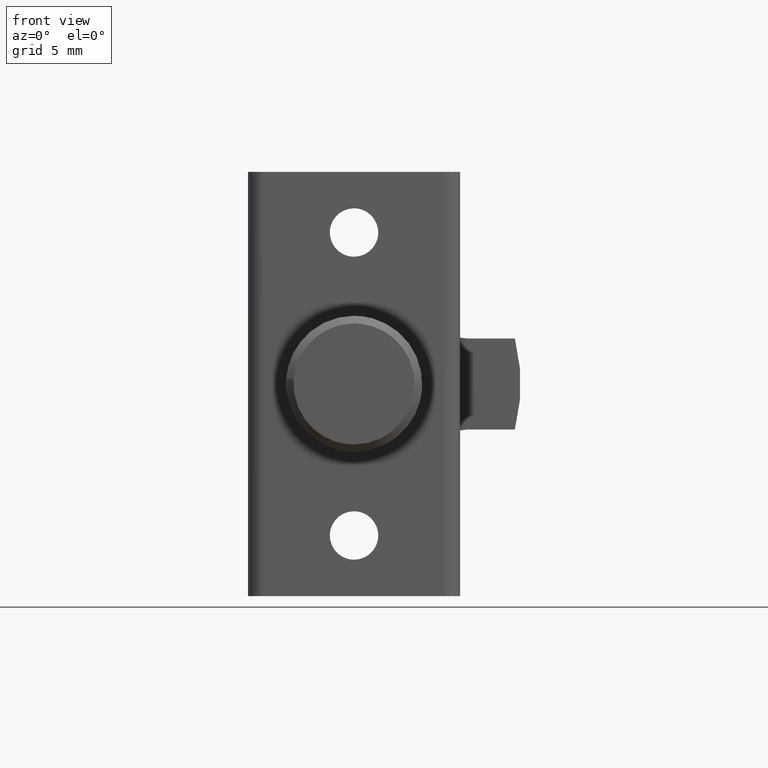
[diagram: clean part render]
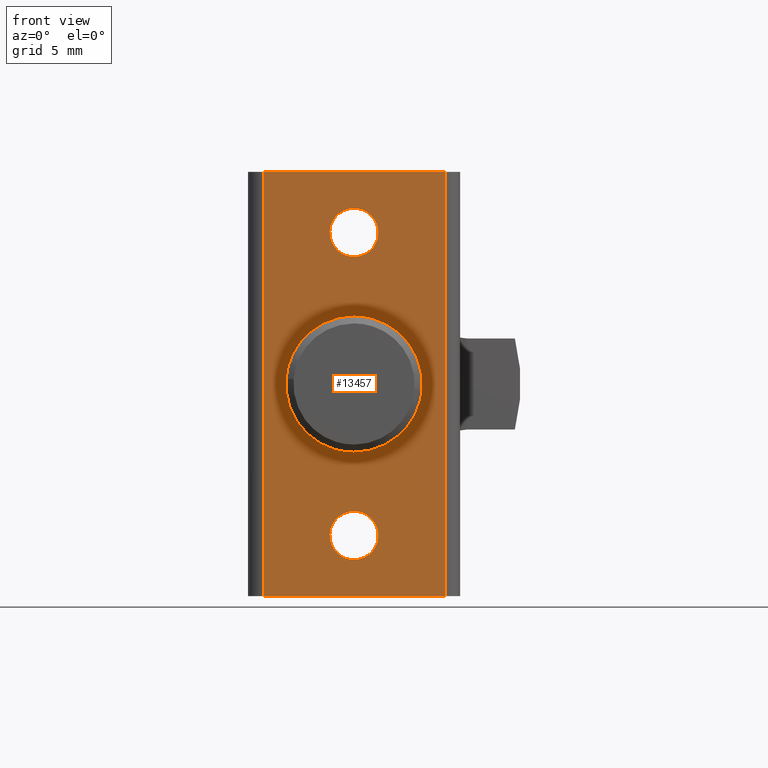
[diagram: same view with one face highlighted and labeled with its STEP entity id]
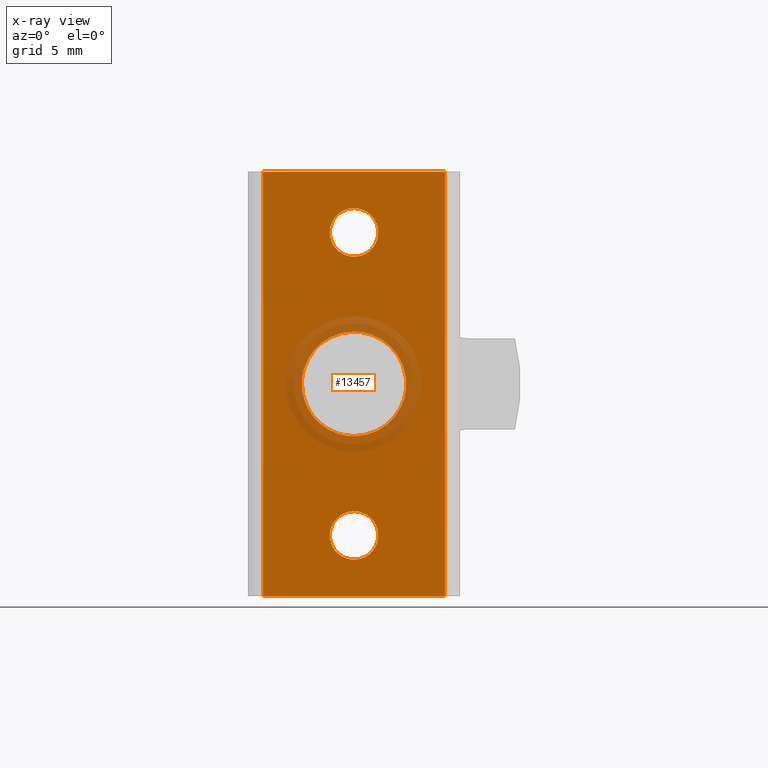
[diagram: x-ray of the same camera — body ghosted, the highlighted face saturated]
A machine part, front view. The second image highlights one B-rep face of the part: STEP entity #13457.
The next image is the same camera in x-ray: the body ghosted, the highlighted face saturated — about 9% of this face is hidden behind the body in this view.
In plain terms, the highlighted face is a freeform B-spline surface patch.
Its self-contained STEP definition (entity closure, byte-faithful):
#12271=CARTESIAN_POINT('',(-5.146464E-017,-3.425882865951193,-0.407218649352348));
#12272=VERTEX_POINT('',#12271);
#12273=CARTESIAN_POINT('',(0.0,0.0,3.449999460242545));
#12274=VERTEX_POINT('',#12273);
#12275=CARTESIAN_POINT('',(-5.146464E-017,-3.425882865951193,-0.407218649352348));
#12276=CARTESIAN_POINT('',(0.0,-3.449999999999999,-0.204323752585928));
#12277=CARTESIAN_POINT('',(0.0,-3.450000000000000,-0.000000539757455));
#12278=CARTESIAN_POINT('',(0.0,-3.450000000000000,3.449999460242546));
#12279=CARTESIAN_POINT('',(0.0,0.0,3.449999460242545));
#12287=(BOUNDED_CURVE()B_SPLINE_CURVE(2,(#12275,#12276,#12277,#12278,#12279),.UNSPECIFIED.,.F.,.U.)B_SPLINE_CURVE_WITH_KNOTS((3,2,3),(0.229562473512776,0.250000000000000,0.500000000000000),.UNSPECIFIED.)CURVE()GEOMETRIC_REPRESENTATION_ITEM()RATIONAL_B_SPLINE_CURVE((0.956026754182263,0.976055948330287,1.0,0.707106781186548,1.0))REPRESENTATION_ITEM(''));
#12288=EDGE_CURVE('',#12272,#12274,#12287,.T.);
#12290=CARTESIAN_POINT('',(-5.204170E-017,3.443565054553264,0.210616921673395));
#12291=VERTEX_POINT('',#12290);
#12292=CARTESIAN_POINT('',(0.0,0.0,3.449999460242545));
#12293=CARTESIAN_POINT('',(0.0,3.245435930757425,3.449999460242544));
#12294=CARTESIAN_POINT('',(-5.204170E-017,3.443565054553264,0.210616921673395));
#12302=(BOUNDED_CURVE()B_SPLINE_CURVE(2,(#12292,#12293,#12294),.UNSPECIFIED.,.F.,.U.)B_SPLINE_CURVE_WITH_KNOTS((3,3),(0.500000000000000,0.739332962238401),.UNSPECIFIED.)CURVE()GEOMETRIC_REPRESENTATION_ITEM()RATIONAL_B_SPLINE_CURVE((1.0,0.719603993287345,0.976072041665556))REPRESENTATION_ITEM(''));
#12303=EDGE_CURVE('',#12274,#12291,#12302,.T.);
#12370=CARTESIAN_POINT('',(0.0,0.0,-3.450000539757455));
#12371=VERTEX_POINT('',#12370);
#12372=CARTESIAN_POINT('',(0.0,0.0,-3.450000539757455));
#12373=CARTESIAN_POINT('',(0.0,-3.064202114479840,-3.450000539757455));
#12374=CARTESIAN_POINT('',(-5.146464E-017,-3.425882865951193,-0.407218649352348));
#12382=(BOUNDED_CURVE()B_SPLINE_CURVE(2,(#12372,#12373,#12374),.UNSPECIFIED.,.F.,.U.)B_SPLINE_CURVE_WITH_KNOTS((3,3),(0.0,0.229562473512776),.UNSPECIFIED.)CURVE()GEOMETRIC_REPRESENTATION_ITEM()RATIONAL_B_SPLINE_CURVE((1.0,0.731050832856261,0.956026754182263))REPRESENTATION_ITEM(''));
#12383=EDGE_CURVE('',#12371,#12272,#12382,.T.);
#12417=CARTESIAN_POINT('',(-5.204170E-017,3.443565054553263,0.210616921673395));
#12418=CARTESIAN_POINT('',(0.0,3.450000000000000,0.105406493658370));
#12419=CARTESIAN_POINT('',(0.0,3.450000000000000,-0.000000539757455));
#12420=CARTESIAN_POINT('',(0.0,3.450000000000000,-3.450000539757455));
#12421=CARTESIAN_POINT('',(0.0,0.0,-3.450000539757455));
#12429=(BOUNDED_CURVE()B_SPLINE_CURVE(2,(#12417,#12418,#12419,#12420,#12421),.UNSPECIFIED.,.F.,.U.)B_SPLINE_CURVE_WITH_KNOTS((3,2,3),(0.739332962238401,0.750000000000000,1.0),.UNSPECIFIED.)CURVE()GEOMETRIC_REPRESENTATION_ITEM()RATIONAL_B_SPLINE_CURVE((0.976072041665557,0.987502787899203,1.0,0.707106781186548,1.0))REPRESENTATION_ITEM(''));
#12430=EDGE_CURVE('',#12291,#12371,#12429,.T.);
#12476=CARTESIAN_POINT('',(6.388714E-017,-1.588815570308451,-10.188851737159069));
#12477=VERTEX_POINT('',#12476);
#12483=CARTESIAN_POINT('',(0.0,0.0,-8.399999722243420));
#12484=VERTEX_POINT('',#12483);
#12485=CARTESIAN_POINT('',(6.388714E-017,-1.588815570308451,-10.188851737159073));
#12486=CARTESIAN_POINT('',(0.0,-1.600000000000000,-10.094756918827244));
#12487=CARTESIAN_POINT('',(0.0,-1.600000000000000,-9.999999722243420));
#12488=CARTESIAN_POINT('',(0.0,-1.600000000000000,-8.399999722243420));
#12489=CARTESIAN_POINT('',(0.0,0.0,-8.399999722243420));
#12497=(BOUNDED_CURVE()B_SPLINE_CURVE(2,(#12485,#12486,#12487,#12488,#12489),.UNSPECIFIED.,.F.,.U.)B_SPLINE_CURVE_WITH_KNOTS((3,2,3),(0.229562767155487,0.250000000000000,0.500000000000000),.UNSPECIFIED.)CURVE()GEOMETRIC_REPRESENTATION_ITEM()RATIONAL_B_SPLINE_CURVE((0.956027329734803,0.976056292354123,1.0,0.707106781186548,1.0))REPRESENTATION_ITEM(''));
#12498=EDGE_CURVE('',#12477,#12484,#12497,.T.);
#12500=CARTESIAN_POINT('',(5.204170E-018,1.597015677471434,-9.902322058929556));
#12501=VERTEX_POINT('',#12500);
#12502=CARTESIAN_POINT('',(0.0,0.0,-8.399999722243420));
#12503=CARTESIAN_POINT('',(0.0,1.505129706939403,-8.399999722243420));
#12504=CARTESIAN_POINT('',(5.204170E-018,1.597015677471434,-9.902322058929556));
#12512=(BOUNDED_CURVE()B_SPLINE_CURVE(2,(#12502,#12503,#12504),.UNSPECIFIED.,.F.,.U.)B_SPLINE_CURVE_WITH_KNOTS((3,3),(0.500000000000000,0.739332962229415),.UNSPECIFIED.)CURVE()GEOMETRIC_REPRESENTATION_ITEM()RATIONAL_B_SPLINE_CURVE((1.0,0.719603993297873,0.976072041646297))REPRESENTATION_ITEM(''));
#12513=EDGE_CURVE('',#12484,#12501,#12512,.T.);
#12591=CARTESIAN_POINT('',(0.0,0.0,-11.599999722243419));
#12592=VERTEX_POINT('',#12591);
#12593=CARTESIAN_POINT('',(5.204170E-018,1.597015677471434,-9.902322058929556));
#12594=CARTESIAN_POINT('',(0.0,1.600000000000000,-9.951115300907421));
#12595=CARTESIAN_POINT('',(0.0,1.600000000000000,-9.999999722243420));
#12596=CARTESIAN_POINT('',(0.0,1.600000000000000,-11.599999722243423));
#12597=CARTESIAN_POINT('',(0.0,0.0,-11.599999722243419));
#12605=(BOUNDED_CURVE()B_SPLINE_CURVE(2,(#12593,#12594,#12595,#12596,#12597),.UNSPECIFIED.,.F.,.U.)B_SPLINE_CURVE_WITH_KNOTS((3,2,3),(0.739332962229415,0.750000000000000,1.0),.UNSPECIFIED.)CURVE()GEOMETRIC_REPRESENTATION_ITEM()RATIONAL_B_SPLINE_CURVE((0.976072041646298,0.987502787888675,1.0,0.707106781186548,1.0))REPRESENTATION_ITEM(''));
#12606=EDGE_CURVE('',#12501,#12592,#12605,.T.);
#12608=CARTESIAN_POINT('',(0.0,0.0,-11.599999722243419));
#12609=CARTESIAN_POINT('',(0.0,-1.421081728002424,-11.599999722243425));
#12610=CARTESIAN_POINT('',(6.388714E-017,-1.588815570308451,-10.188851737159073));
#12618=(BOUNDED_CURVE()B_SPLINE_CURVE(2,(#12608,#12609,#12610),.UNSPECIFIED.,.F.,.U.)B_SPLINE_CURVE_WITH_KNOTS((3,3),(0.0,0.229562767155487),.UNSPECIFIED.)CURVE()GEOMETRIC_REPRESENTATION_ITEM()RATIONAL_B_SPLINE_CURVE((1.0,0.731050488832425,0.956027329734803))REPRESENTATION_ITEM(''));
#12619=EDGE_CURVE('',#12592,#12477,#12618,.T.);
#12647=CARTESIAN_POINT('',(1.591074E-013,-1.588815574397147,9.811148297239837));
#12648=VERTEX_POINT('',#12647);
#12649=CARTESIAN_POINT('',(0.0,0.0,11.600000277756701));
#12650=VERTEX_POINT('',#12649);
#12651=CARTESIAN_POINT('',(1.591074E-013,-1.588815574397146,9.811148297239837));
#12652=CARTESIAN_POINT('',(0.0,-1.600000000000001,9.905243098554092));
#12653=CARTESIAN_POINT('',(0.0,-1.600000000000000,10.000000277756699));
#12654=CARTESIAN_POINT('',(0.0,-1.600000000000000,11.600000277756697));
#12655=CARTESIAN_POINT('',(0.0,0.0,11.600000277756701));
#12663=(BOUNDED_CURVE()B_SPLINE_CURVE(2,(#12651,#12652,#12653,#12654,#12655),.UNSPECIFIED.,.F.,.U.)B_SPLINE_CURVE_WITH_KNOTS((3,2,3),(0.229562770814508,0.250000000000000,0.500000000000000),.UNSPECIFIED.)CURVE()GEOMETRIC_REPRESENTATION_ITEM()RATIONAL_B_SPLINE_CURVE((0.956027336906655,0.976056296640933,1.0,0.707106781186548,1.0))REPRESENTATION_ITEM(''));
#12664=EDGE_CURVE('',#12648,#12650,#12663,.T.);
#12666=CARTESIAN_POINT('',(-5.204170E-017,1.597015677471434,10.097677941070570));
#12667=VERTEX_POINT('',#12666);
#12668=CARTESIAN_POINT('',(0.0,0.0,11.600000277756701));
#12669=CARTESIAN_POINT('',(0.0,1.505129706939403,11.600000277756699));
#12670=CARTESIAN_POINT('',(-5.204170E-017,1.597015677471434,10.097677941070565));
#12678=(BOUNDED_CURVE()B_SPLINE_CURVE(2,(#12668,#12669,#12670),.UNSPECIFIED.,.F.,.U.)B_SPLINE_CURVE_WITH_KNOTS((3,3),(0.500000000000000,0.739332962229415),.UNSPECIFIED.)CURVE()GEOMETRIC_REPRESENTATION_ITEM()RATIONAL_B_SPLINE_CURVE((1.0,0.719603993297873,0.976072041646297))REPRESENTATION_ITEM(''));
#12679=EDGE_CURVE('',#12650,#12667,#12678,.T.);
#12750=CARTESIAN_POINT('',(0.0,0.0,8.400000277756700));
#12751=VERTEX_POINT('',#12750);
#12752=CARTESIAN_POINT('',(0.0,0.0,8.400000277756700));
#12753=CARTESIAN_POINT('',(0.0,-1.421081758986257,8.400000277756702));
#12754=CARTESIAN_POINT('',(1.591074E-013,-1.588815574397147,9.811148297239837));
#12762=(BOUNDED_CURVE()B_SPLINE_CURVE(2,(#12752,#12753,#12754),.UNSPECIFIED.,.F.,.U.)B_SPLINE_CURVE_WITH_KNOTS((3,3),(0.0,0.229562770814508),.UNSPECIFIED.)CURVE()GEOMETRIC_REPRESENTATION_ITEM()RATIONAL_B_SPLINE_CURVE((1.0,0.731050484545615,0.956027336906655))REPRESENTATION_ITEM(''));
#12763=EDGE_CURVE('',#12751,#12648,#12762,.T.);
#12797=CARTESIAN_POINT('',(-5.204170E-017,1.597015677471434,10.097677941070565));
#12798=CARTESIAN_POINT('',(0.0,1.600000000000000,10.048884699092699));
#12799=CARTESIAN_POINT('',(0.0,1.600000000000000,10.000000277756699));
#12800=CARTESIAN_POINT('',(0.0,1.600000000000000,8.400000277756702));
#12801=CARTESIAN_POINT('',(0.0,0.0,8.400000277756700));
#12809=(BOUNDED_CURVE()B_SPLINE_CURVE(2,(#12797,#12798,#12799,#12800,#12801),.UNSPECIFIED.,.F.,.U.)B_SPLINE_CURVE_WITH_KNOTS((3,2,3),(0.739332962229415,0.750000000000000,1.0),.UNSPECIFIED.)CURVE()GEOMETRIC_REPRESENTATION_ITEM()RATIONAL_B_SPLINE_CURVE((0.976072041646298,0.987502787888675,1.0,0.707106781186548,1.0))REPRESENTATION_ITEM(''));
#12810=EDGE_CURVE('',#12667,#12751,#12809,.T.);
#13178=CARTESIAN_POINT('',(-7.347638E-016,6.0,14.000000277756600));
#13179=VERTEX_POINT('',#13178);
#13193=CARTESIAN_POINT('',(6.661338E-016,-6.0,14.000000277756600));
#13194=VERTEX_POINT('',#13193);
#13195=CARTESIAN_POINT('',(6.661338E-016,-6.0,14.000000277756600));
#13196=CARTESIAN_POINT('',(-7.347638E-016,6.0,14.000000277756600));
#13197=QUASI_UNIFORM_CURVE('',1,(#13195,#13196),.UNSPECIFIED.,.F.,.U.);
#13198=EDGE_CURVE('',#13194,#13179,#13197,.T.);
#13314=CARTESIAN_POINT('',(6.661338E-016,-6.0,-13.999999722243301));
#13315=VERTEX_POINT('',#13314);
#13329=CARTESIAN_POINT('',(-7.347638E-016,6.0,-13.999999722243301));
#13330=VERTEX_POINT('',#13329);
#13331=CARTESIAN_POINT('',(6.661338E-016,-6.0,-13.999999722243301));
#13332=CARTESIAN_POINT('',(-7.347638E-016,6.0,-13.999999722243301));
#13333=QUASI_UNIFORM_CURVE('',1,(#13331,#13332),.UNSPECIFIED.,.F.,.U.);
#13334=EDGE_CURVE('',#13315,#13330,#13333,.T.);
#13416=CARTESIAN_POINT('',(-7.347638E-016,6.0,-13.999999722243301));
#13417=CARTESIAN_POINT('',(-7.347638E-016,6.0,14.000000277756600));
#13418=QUASI_UNIFORM_CURVE('',1,(#13416,#13417),.UNSPECIFIED.,.F.,.U.);
#13419=EDGE_CURVE('',#13330,#13179,#13418,.T.);
#13424=CARTESIAN_POINT('',(7.347638E-016,-6.599399976741672,-15.398599930817831));
#13425=CARTESIAN_POINT('',(7.347638E-016,6.599400298606753,-15.398599930817831));
#13426=CARTESIAN_POINT('',(7.347638E-016,-6.599399976741672,15.398600987010150));
#13427=CARTESIAN_POINT('',(7.347638E-016,6.599400298606753,15.398600987010150));
#13428=B_SPLINE_SURFACE_WITH_KNOTS('',1,1,((#13424,#13426),(#13425,#13427)),.UNSPECIFIED.,.F.,.F.,.U.,(2,2),(2,2),(0.0,13.198800275348431),(0.0,30.797200917827979),.UNSPECIFIED.);
#13429=ORIENTED_EDGE('',*,*,#13198,.T.);
#13430=ORIENTED_EDGE('',*,*,#13419,.F.);
#13431=ORIENTED_EDGE('',*,*,#13334,.F.);
#13432=CARTESIAN_POINT('',(6.661338E-016,-6.0,-13.999999722243301));
#13433=CARTESIAN_POINT('',(6.661338E-016,-6.0,14.000000277756600));
#13434=QUASI_UNIFORM_CURVE('',1,(#13432,#13433),.UNSPECIFIED.,.F.,.U.);
#13435=EDGE_CURVE('',#13315,#13194,#13434,.T.);
#13436=ORIENTED_EDGE('',*,*,#13435,.T.);
#13437=EDGE_LOOP('',(#13429,#13430,#13431,#13436));
#13438=FACE_OUTER_BOUND('',#13437,.T.);
#13439=ORIENTED_EDGE('',*,*,#12679,.F.);
#13440=ORIENTED_EDGE('',*,*,#12664,.F.);
#13441=ORIENTED_EDGE('',*,*,#12763,.F.);
#13442=ORIENTED_EDGE('',*,*,#12810,.F.);
#13443=EDGE_LOOP('',(#13439,#13440,#13441,#13442));
#13444=FACE_BOUND('',#13443,.T.);
#13445=ORIENTED_EDGE('',*,*,#12513,.F.);
#13446=ORIENTED_EDGE('',*,*,#12498,.F.);
#13447=ORIENTED_EDGE('',*,*,#12619,.F.);
#13448=ORIENTED_EDGE('',*,*,#12606,.F.);
#13449=EDGE_LOOP('',(#13445,#13446,#13447,#13448));
#13450=FACE_BOUND('',#13449,.T.);
#13451=ORIENTED_EDGE('',*,*,#12303,.F.);
#13452=ORIENTED_EDGE('',*,*,#12288,.F.);
#13453=ORIENTED_EDGE('',*,*,#12383,.F.);
#13454=ORIENTED_EDGE('',*,*,#12430,.F.);
#13455=EDGE_LOOP('',(#13451,#13452,#13453,#13454));
#13456=FACE_BOUND('',#13455,.T.);
#13457=ADVANCED_FACE('',(#13438,#13444,#13450,#13456),#13428,.F.);